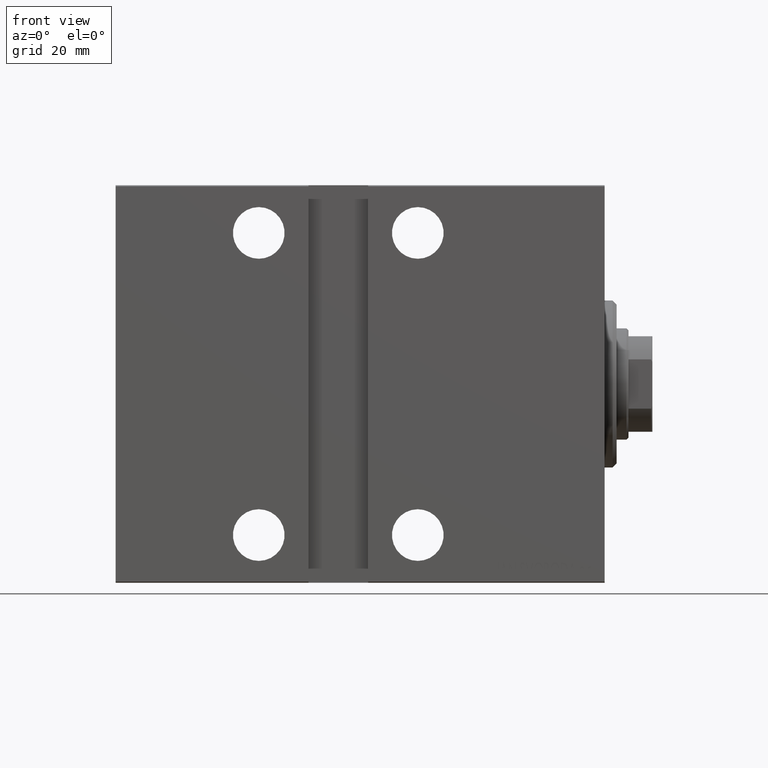
[diagram: clean part render]
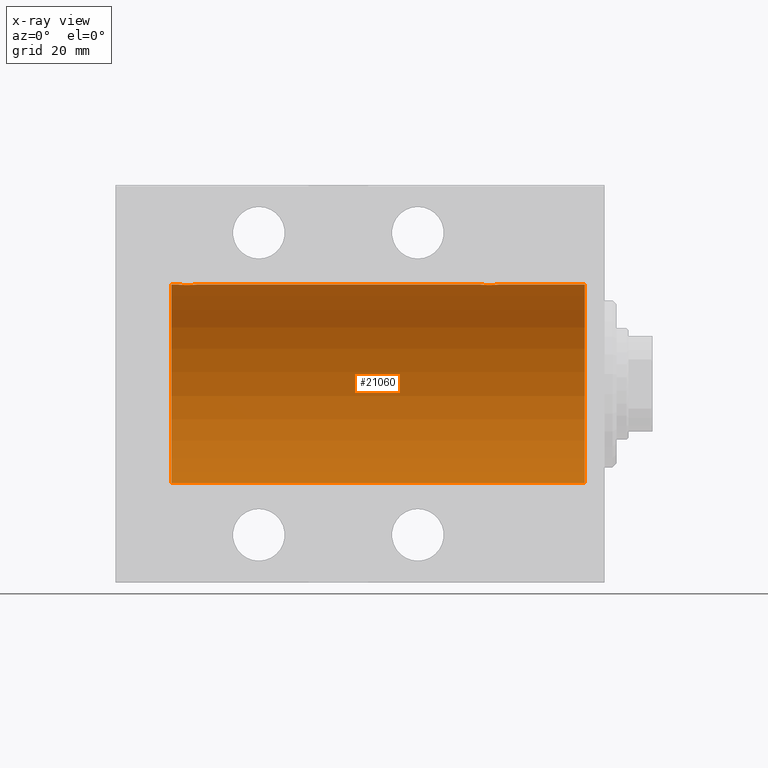
[diagram: x-ray — body ghosted, one internal face saturated and labeled with its STEP entity id]
A machine part, front view, then the same camera in x-ray: the body is ghosted and one INTERNAL B-rep face — a face not visible from any outside direction — is saturated and labeled: STEP entity #21060.
In plain terms, the highlighted cylindrical surface (partial cylindrical patch) has radius 25 mm, axis along (1, 0, -0).
Its self-contained STEP definition (entity closure, byte-faithful):
#84 = CARTESIAN_POINT ( 'NONE',  ( 26.50000000000000711, -0.1631750940176214526, 25.00000000000000711 ) ) ;
#488 = VERTEX_POINT ( 'NONE', #11652 ) ;
#1486 = CARTESIAN_POINT ( 'NONE',  ( 106.5225677434019502, -1.989585286700258138, 24.92087098724766747 ) ) ;
#1731 = VERTEX_POINT ( 'NONE', #24363 ) ;
#1930 = CARTESIAN_POINT ( 'NONE',  ( 104.1921165759419381, -2.371528299825759856, 24.88734287464370709 ) ) ;
#2409 = CARTESIAN_POINT ( 'NONE',  ( 5.000000000000004441, 0.000000000000000000, 0.000000000000000000 ) ) ;
#2901 = CARTESIAN_POINT ( 'NONE',  ( 109.0000000000000000, 3.061616997868383043E-15, -25.00000000000000000 ) ) ;
#3550 = VERTEX_POINT ( 'NONE', #7879 ) ;
#4804 = CARTESIAN_POINT ( 'NONE',  ( 109.0000000000000000, 0.000000000000000000, 25.00000000000000000 ) ) ;
#4878 = CARTESIAN_POINT ( 'NONE',  ( 31.50000000000000000, -3.359922002512890391E-15, 25.00000000000000000 ) ) ;
#4961 = DIRECTION ( 'NONE',  ( -1.000000000000000000, -0.000000000000000000, -0.000000000000000000 ) ) ;
#4995 = CARTESIAN_POINT ( 'NONE',  ( 104.3509560983090267, -2.419770561643919127, 24.88263927071750814 ) ) ;
#5219 = CARTESIAN_POINT ( 'NONE',  ( 106.6512113355911566, -1.884161199660627561, 24.92916496727982789 ) ) ;
#5459 = DIRECTION ( 'NONE',  ( -1.000000000000000000, -0.000000000000000000, -0.000000000000000000 ) ) ;
#6110 = EDGE_CURVE ( 'NONE', #37652, #23710, #19458, .T. ) ;
#6586 = ORIENTED_EDGE ( 'NONE', *, *, #35175, .T. ) ;
#7029 = CARTESIAN_POINT ( 'NONE',  ( 102.5000000000000000, -1.940203396391078535E-23, 25.00000000000000000 ) ) ;
#7084 = CARTESIAN_POINT ( 'NONE',  ( 27.74616804575498108, -2.169003991399871989, 24.90589728951138326 ) ) ;
#7154 = EDGE_CURVE ( 'NONE', #39373, #13023, #15047, .T. ) ;
#7879 = CARTESIAN_POINT ( 'NONE',  ( 109.0000000000000000, 3.061616997868383043E-15, -25.00000000000000000 ) ) ;
#8148 = CARTESIAN_POINT ( 'NONE',  ( 31.43349355239747567, -0.6588655613945881839, 24.99312727339970053 ) ) ;
#8266 = CARTESIAN_POINT ( 'NONE',  ( 106.9853803371709375, -1.528152964861310803, 24.95362559291378091 ) ) ;
#8368 = CARTESIAN_POINT ( 'NONE',  ( 31.49999999999998579, -0.3305063766663721148, 25.00000000000000000 ) ) ;
#8706 = CARTESIAN_POINT ( 'NONE',  ( 103.1158761721352732, -1.651251241585110163, 24.94567559498348430 ) ) ;
#8916 = CARTESIAN_POINT ( 'NONE',  ( 107.5000000000000426, -0.3305063766663758895, 25.00000000000000355 ) ) ;
#9340 = VECTOR ( 'NONE', #41575, 1000.000000000000000 ) ;
#10060 = ORIENTED_EDGE ( 'NONE', *, *, #26496, .T. ) ;
#10356 = CARTESIAN_POINT ( 'NONE',  ( 27.34616663850662377, -1.881857718844717642, 24.92933960374833902 ) ) ;
#10988 = CARTESIAN_POINT ( 'NONE',  ( 28.83293504821940090, -2.499872792855082793, 24.87469871246082320 ) ) ;
#11006 = VECTOR ( 'NONE', #16174, 1000.000000000000000 ) ;
#11171 = VERTEX_POINT ( 'NONE', #18281 ) ;
#11196 = CARTESIAN_POINT ( 'NONE',  ( 29.16323589638543723, -2.500125740978195843, 24.87467329022545570 ) ) ;
#11425 = CARTESIAN_POINT ( 'NONE',  ( 31.16827641493957302, -1.255214705003183440, 24.96884293994578385 ) ) ;
#11652 = CARTESIAN_POINT ( 'NONE',  ( 107.5000000000000000, 2.971051067387116602E-15, 25.00000000000000000 ) ) ;
#11675 = DIRECTION ( 'NONE',  ( 0.000000000000000000, 0.000000000000000000, 1.000000000000000000 ) ) ;
#12124 = B_SPLINE_CURVE_WITH_KNOTS ( 'NONE', 3,
 ( #29819, #84, #43167, #13200, #13419, #26768, #40119, #23482, #40330, #10356, #37015, #7084, #20405, #27610, #18190, #14255, #10988, #11196, #31312, #30889, #38311, #37448, #41401, #41171, #17758, #18416, #37873, #11425, #24540, #8148, #8368, #4878 ),
 .UNSPECIFIED., .F., .F.,
 ( 4, 2, 2, 2, 2, 2, 2, 2, 2, 2, 2, 2, 2, 2, 2, 4 ),
 ( 0.007821024441662275534, 0.008309723826317880202, 0.008798423210973486605, 0.009287122595629093008, 0.009775821980284697676, 0.01026452136494030234, 0.01075322074959590875, 0.01124192013425151515, 0.01173061951890711982, 0.01221931890356272449, 0.01270801828821833089, 0.01319671767287393729, 0.01368541705752954196, 0.01417411644218514663, 0.01466281582684075303, 0.01564021459615196410 ),
 .UNSPECIFIED. ) ;
#12188 = CARTESIAN_POINT ( 'NONE',  ( 103.7461680457549846, -2.169003991399879983, 24.90589728951138326 ) ) ;
#12400 = CARTESIAN_POINT ( 'NONE',  ( 102.7523974898045083, -1.106703319666891838, 24.97594585958023217 ) ) ;
#12702 = AXIS2_PLACEMENT_3D ( 'NONE', #41704, #4961, #31846 ) ;
#13023 = VERTEX_POINT ( 'NONE', #28715 ) ;
#13200 = CARTESIAN_POINT ( 'NONE',  ( 26.57985090779070347, -0.6480119923854229524, 24.99212088949390420 ) ) ;
#13419 = CARTESIAN_POINT ( 'NONE',  ( 26.62784030591392792, -0.8058335233485480753, 24.98746277938383287 ) ) ;
#14255 = CARTESIAN_POINT ( 'NONE',  ( 28.67052319885732103, -2.483544361357271857, 24.87635491893501438 ) ) ;
#14378 = EDGE_CURVE ( 'NONE', #1731, #23710, #27987, .T. ) ;
#14521 = VECTOR ( 'NONE', #5459, 1000.000000000000000 ) ;
#14804 = CARTESIAN_POINT ( 'NONE',  ( 107.2460637909406813, -1.109818057797417490, 24.97580694515541921 ) ) ;
#14866 = CARTESIAN_POINT ( 'NONE',  ( 109.0000000000000000, 0.000000000000000000, 25.00000000000000000 ) ) ;
#15026 = CARTESIAN_POINT ( 'NONE',  ( 102.6278403059139350, -0.8058335233485532934, 24.98746277938383287 ) ) ;
#15047 = LINE ( 'NONE', #4804, #14521 ) ;
#15240 = CARTESIAN_POINT ( 'NONE',  ( 107.1682764149395553, -1.255214705003179221, 24.96884293994577675 ) ) ;
#15374 = CARTESIAN_POINT ( 'NONE',  ( 109.0000000000000000, 0.000000000000000000, 0.000000000000000000 ) ) ;
#15931 = EDGE_LOOP ( 'NONE', ( #29210, #41342, #16294, #30893, #6586, #32310, #10060, #17762 ) ) ;
#16174 = DIRECTION ( 'NONE',  ( -1.000000000000000000, -0.000000000000000000, -0.000000000000000000 ) ) ;
#16294 = ORIENTED_EDGE ( 'NONE', *, *, #14378, .T. ) ;
#16417 = CARTESIAN_POINT ( 'NONE',  ( 26.50000000000000355, -1.940558383798427991E-23, 25.00000000000000000 ) ) ;
#16430 = CIRCLE ( 'NONE', #40899, 25.00000000000000000 ) ;
#16809 = AXIS2_PLACEMENT_3D ( 'NONE', #2409, #26224, #39572 ) ;
#17758 = CARTESIAN_POINT ( 'NONE',  ( 30.65121133559112820, -1.884161199660616459, 24.92916496727982434 ) ) ;
#17762 = ORIENTED_EDGE ( 'NONE', *, *, #27576, .F. ) ;
#18089 = CARTESIAN_POINT ( 'NONE',  ( 106.8818595414864632, -1.653834020452947362, 24.94550385189584318 ) ) ;
#18190 = CARTESIAN_POINT ( 'NONE',  ( 28.35095609830903740, -2.419770561643910689, 24.88263927071751169 ) ) ;
#18281 = CARTESIAN_POINT ( 'NONE',  ( 109.0000000000000000, 0.000000000000000000, 25.00000000000000000 ) ) ;
#18416 = CARTESIAN_POINT ( 'NONE',  ( 30.88185954148645962, -1.653834020452937814, 24.94550385189585029 ) ) ;
#18530 = CARTESIAN_POINT ( 'NONE',  ( 102.5158215994234183, -0.3254210271412264488, 24.99840249400844883 ) ) ;
#18873 = DIRECTION ( 'NONE',  ( -1.000000000000000000, 0.000000000000000000, 0.000000000000000000 ) ) ;
#19458 = LINE ( 'NONE', #32801, #11006 ) ;
#20405 = CARTESIAN_POINT ( 'NONE',  ( 27.88963203491136156, -2.245863995402901381, 24.89899750494197050 ) ) ;
#21060 = ADVANCED_FACE ( 'NONE', ( #41049 ), #37738, .F. ) ;
#21815 = CARTESIAN_POINT ( 'NONE',  ( 104.8329350482193973, -2.499872792855093451, 24.87469871246082320 ) ) ;
#22035 = CARTESIAN_POINT ( 'NONE',  ( 107.4334935523974792, -0.6588655613945869627, 24.99312727339970053 ) ) ;
#22459 = CARTESIAN_POINT ( 'NONE',  ( 105.3259657003945904, -2.484007091859774086, 24.87630842367763151 ) ) ;
#23482 = CARTESIAN_POINT ( 'NONE',  ( 27.01250184165601809, -1.525407911884367085, 24.95379469572361941 ) ) ;
#23710 = VERTEX_POINT ( 'NONE', #25453 ) ;
#24363 = CARTESIAN_POINT ( 'NONE',  ( 5.000000000000004441, 3.061616997868383043E-15, -25.00000000000000000 ) ) ;
#24540 = CARTESIAN_POINT ( 'NONE',  ( 31.24606379094067066, -1.109818057797417046, 24.97580694515541921 ) ) ;
#24716 = LINE ( 'NONE', #14866, #9340 ) ;
#25453 = CARTESIAN_POINT ( 'NONE',  ( 5.000000000000004441, 0.000000000000000000, 25.00000000000000000 ) ) ;
#25538 = CARTESIAN_POINT ( 'NONE',  ( 102.8298870971907775, -1.252049606094350453, 24.96900299967627390 ) ) ;
#26224 = DIRECTION ( 'NONE',  ( -1.000000000000000000, 0.000000000000000000, 0.000000000000000000 ) ) ;
#26496 = EDGE_CURVE ( 'NONE', #39373, #488, #28095, .T. ) ;
#26768 = CARTESIAN_POINT ( 'NONE',  ( 26.75239748980449761, -1.106703319666885399, 24.97594585958023572 ) ) ;
#27576 = EDGE_CURVE ( 'NONE', #11171, #488, #24716, .T. ) ;
#27610 = CARTESIAN_POINT ( 'NONE',  ( 28.19211657594193809, -2.371528299825749198, 24.88734287464370709 ) ) ;
#27987 = CIRCLE ( 'NONE', #16809, 25.00000000000000000 ) ;
#28095 = B_SPLINE_CURVE_WITH_KNOTS ( 'NONE', 3,
 ( #32087, #32307, #18530, #41732, #15026, #12400, #25538, #28812, #8706, #42166, #39080, #12188, #38869, #1930, #4995, #34927, #21815, #41946, #22459, #35156, #42378, #28592, #35798, #1486, #5219, #18089, #8266, #15240, #14804, #22035, #8916, #28383 ),
 .UNSPECIFIED., .F., .F.,
 ( 4, 2, 2, 2, 2, 2, 2, 2, 2, 2, 2, 2, 2, 2, 2, 4 ),
 ( 0.007821024441662341453, 0.008309723826317951326, 0.008798423210973559463, 0.009287122595629169336, 0.009775821980284777474, 0.01026452136494038735, 0.01075322074959599548, 0.01124192013425160536, 0.01173061951890721349, 0.01221931890356282337, 0.01270801828821843324, 0.01319671767287404138, 0.01368541705752964951, 0.01417411644218525939, 0.01466281582684086926, 0.01564021459615210288 ),
 .UNSPECIFIED. ) ;
#28383 = CARTESIAN_POINT ( 'NONE',  ( 107.5000000000000000, 2.971051067387116602E-15, 25.00000000000000000 ) ) ;
#28592 = CARTESIAN_POINT ( 'NONE',  ( 106.1072384583841028, -2.247417070759907709, 24.89885693081946272 ) ) ;
#28715 = CARTESIAN_POINT ( 'NONE',  ( 31.50000000000000000, -3.359922002512890391E-15, 25.00000000000000000 ) ) ;
#28812 = CARTESIAN_POINT ( 'NONE',  ( 103.0125018416559897, -1.525407911884377965, 24.95379469572361941 ) ) ;
#29210 = ORIENTED_EDGE ( 'NONE', *, *, #32895, .F. ) ;
#29819 = CARTESIAN_POINT ( 'NONE',  ( 26.50000000000000355, -1.940558383798427991E-23, 25.00000000000000000 ) ) ;
#30889 = CARTESIAN_POINT ( 'NONE',  ( 29.64560666148631896, -2.420689345803761050, 24.88254961038873958 ) ) ;
#30893 = ORIENTED_EDGE ( 'NONE', *, *, #6110, .F. ) ;
#31312 = CARTESIAN_POINT ( 'NONE',  ( 29.32596570039460104, -2.484007091859765204, 24.87630842367763506 ) ) ;
#31846 = DIRECTION ( 'NONE',  ( 0.000000000000000000, 0.000000000000000000, 1.000000000000000000 ) ) ;
#32087 = CARTESIAN_POINT ( 'NONE',  ( 102.5000000000000000, -1.940203396391078535E-23, 25.00000000000000000 ) ) ;
#32307 = CARTESIAN_POINT ( 'NONE',  ( 102.4999999999999432, -0.1631750940176235343, 25.00000000000000355 ) ) ;
#32310 = ORIENTED_EDGE ( 'NONE', *, *, #7154, .F. ) ;
#32801 = CARTESIAN_POINT ( 'NONE',  ( 109.0000000000000000, 0.000000000000000000, 25.00000000000000000 ) ) ;
#32895 = EDGE_CURVE ( 'NONE', #3550, #11171, #16430, .T. ) ;
#33490 = LINE ( 'NONE', #2901, #42269 ) ;
#34927 = CARTESIAN_POINT ( 'NONE',  ( 104.6705231988572962, -2.483544361357281627, 24.87635491893501793 ) ) ;
#35156 = CARTESIAN_POINT ( 'NONE',  ( 105.6456066614863119, -2.420689345803769044, 24.88254961038873958 ) ) ;
#35175 = EDGE_CURVE ( 'NONE', #37652, #13023, #12124, .T. ) ;
#35503 = EDGE_CURVE ( 'NONE', #3550, #1731, #33490, .T. ) ;
#35798 = CARTESIAN_POINT ( 'NONE',  ( 106.2508402392405458, -2.170728182476731938, 24.90574631553725027 ) ) ;
#37015 = CARTESIAN_POINT ( 'NONE',  ( 27.47463817756919369, -1.987446652080264720, 24.92104239223420592 ) ) ;
#37195 = DIRECTION ( 'NONE',  ( -1.000000000000000000, -0.000000000000000000, -0.000000000000000000 ) ) ;
#37448 = CARTESIAN_POINT ( 'NONE',  ( 30.10723845838410284, -2.247417070759897495, 24.89885693081946272 ) ) ;
#37652 = VERTEX_POINT ( 'NONE', #16417 ) ;
#37738 = CYLINDRICAL_SURFACE ( 'NONE', #12702, 25.00000000000000000 ) ;
#37873 = CARTESIAN_POINT ( 'NONE',  ( 30.98538033717094464, -1.528152964861312801, 24.95362559291378801 ) ) ;
#38311 = CARTESIAN_POINT ( 'NONE',  ( 29.80435660916301899, -2.372734907014175665, 24.88722742718433878 ) ) ;
#38869 = CARTESIAN_POINT ( 'NONE',  ( 103.8896320349113722, -2.245863995402913371, 24.89899750494197050 ) ) ;
#39080 = CARTESIAN_POINT ( 'NONE',  ( 103.4746381775692043, -1.987446652080271159, 24.92104239223420592 ) ) ;
#39373 = VERTEX_POINT ( 'NONE', #7029 ) ;
#39572 = DIRECTION ( 'NONE',  ( 0.000000000000000000, 0.000000000000000000, 1.000000000000000000 ) ) ;
#40119 = CARTESIAN_POINT ( 'NONE',  ( 26.82988709719076681, -1.252049606094339795, 24.96900299967627390 ) ) ;
#40330 = CARTESIAN_POINT ( 'NONE',  ( 27.11587617213528745, -1.651251241585102836, 24.94567559498349141 ) ) ;
#40899 = AXIS2_PLACEMENT_3D ( 'NONE', #15374, #18873, #11675 ) ;
#41049 = FACE_OUTER_BOUND ( 'NONE', #15931, .T. ) ;
#41171 = CARTESIAN_POINT ( 'NONE',  ( 30.52256774340189693, -1.989585286700245037, 24.92087098724766747 ) ) ;
#41342 = ORIENTED_EDGE ( 'NONE', *, *, #35503, .T. ) ;
#41401 = CARTESIAN_POINT ( 'NONE',  ( 30.25084023924055998, -2.170728182476720391, 24.90574631553725027 ) ) ;
#41575 = DIRECTION ( 'NONE',  ( -1.000000000000000000, -0.000000000000000000, -0.000000000000000000 ) ) ;
#41704 = CARTESIAN_POINT ( 'NONE',  ( 109.0000000000000000, 0.000000000000000000, 0.000000000000000000 ) ) ;
#41732 = CARTESIAN_POINT ( 'NONE',  ( 102.5798509077906999, -0.6480119923854288366, 24.99212088949390775 ) ) ;
#41946 = CARTESIAN_POINT ( 'NONE',  ( 105.1632358963854159, -2.500125740978206057, 24.87467329022545570 ) ) ;
#42166 = CARTESIAN_POINT ( 'NONE',  ( 103.3461666385066025, -1.881857718844725857, 24.92933960374833546 ) ) ;
#42269 = VECTOR ( 'NONE', #37195, 1000.000000000000000 ) ;
#42378 = CARTESIAN_POINT ( 'NONE',  ( 105.8043566091630083, -2.372734907014184991, 24.88722742718433523 ) ) ;
#43167 = CARTESIAN_POINT ( 'NONE',  ( 26.51582159942343608, -0.3254210271412225630, 24.99840249400844883 ) ) ;